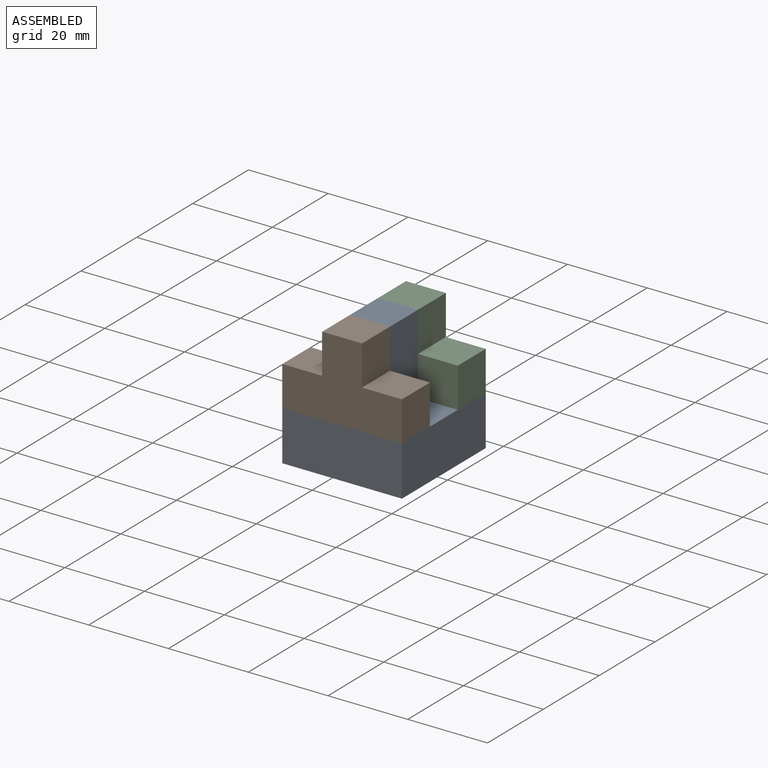
[diagram: assembled view]
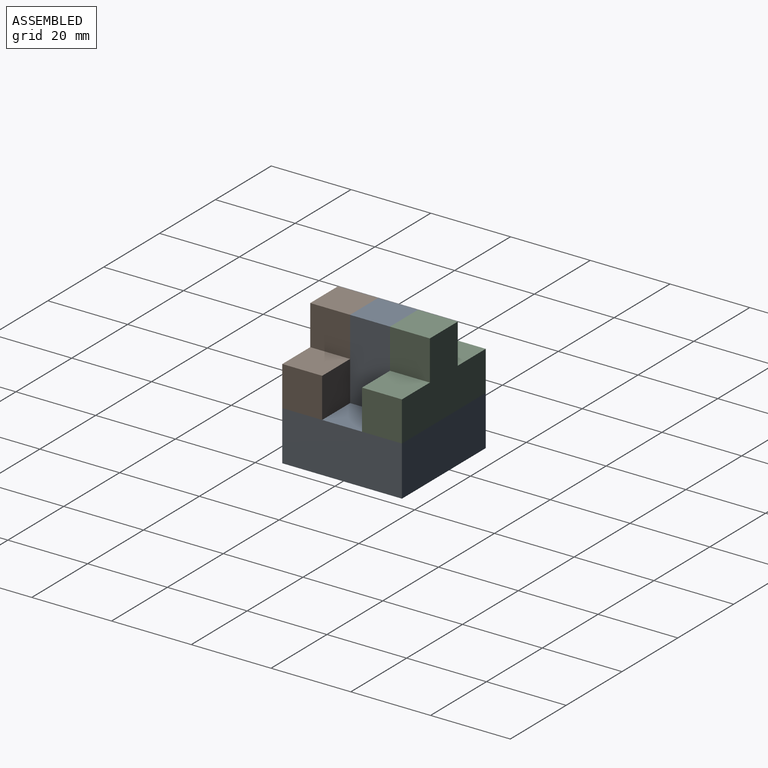
[diagram: assembled view, second angle]
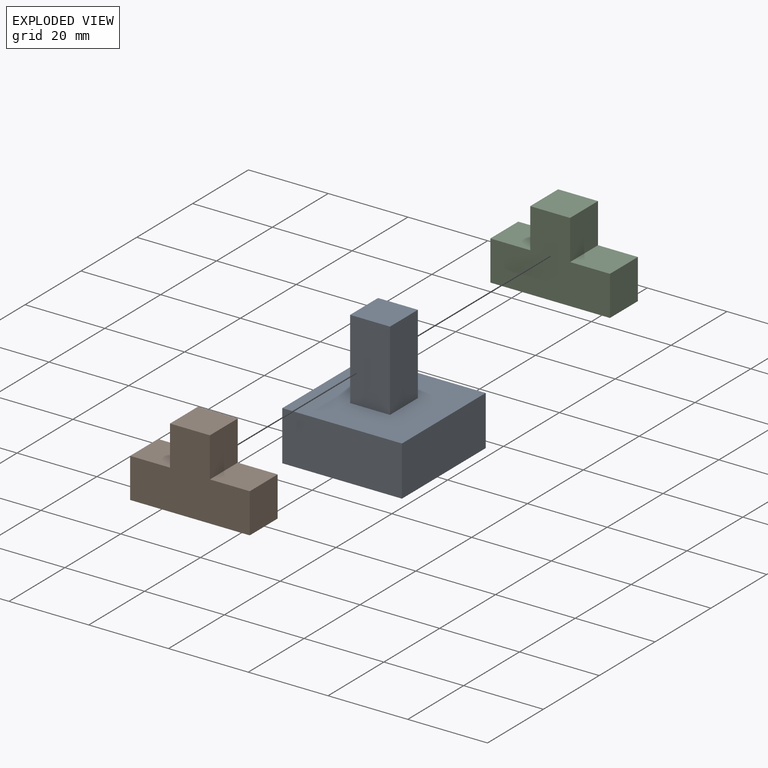
[diagram: exploded view]
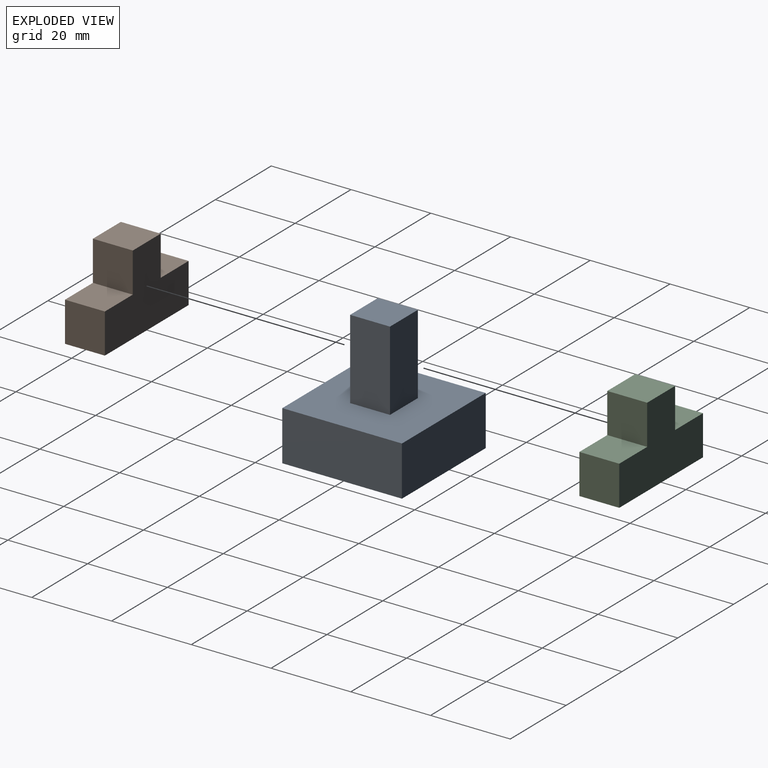
[diagram: exploded view, second angle]
ASSEMBLY  parts=3 mates=2
PART A: 74 faces, bbox 30x30x32.5 mm
  f0: plane 30x12.5mm, normal (0,1,0), area 375mm2, adj f1,f3,f4,f68
  f1: plane 30x12.5mm, normal (-1,0,0), area 375mm2, adj f0,f2,f4,f68
  f2: plane 30x12.5mm, normal (0,-1,0), area 375mm2, adj f1,f3,f4,f68
  f3: plane 30x12.5mm, normal (1,0,0), area 375mm2, adj f0,f2,f4,f68
  f4: plane 30x30mm, normal (0,0,1), area 800mm2, adj f0,f1,f2,f3,f5,f6,f7,f8
  f5: plane 20x10mm, normal (-1,0,0), area 200mm2, adj f4,f6,f8,f9
  f6: plane 20x10mm, normal (0,-1,0), area 200mm2, adj f4,f5,f7,f9
  f7: plane 20x10mm, normal (1,0,0), area 200mm2, adj f4,f6,f8,f9
  f8: plane 20x10mm, normal (0,1,0), area 200mm2, adj f4,f5,f7,f9
  f9: plane 10x10mm, normal (0,0,1), area 100mm2, adj f5,f6,f7,f8
  f10: plane 2.5x0.65mm, normal (0,-1,0), area 1.6mm2, adj f11,f67,f68,f69
  f11: plane 6.15x2.5mm, normal (0.93,-0.36,0), area 16.5mm2, adj f10,f12,f68,f69
  f12: plane 2.5x0.04mm, normal (0,-1,0), area 0.1mm2, adj f11,f13,f68,f69
  f13: extruded ~2.5x1.74mm, area 4.3mm2, adj f12,f14,f68,f69
  f14: plane 4.41x2.5mm, normal (-1,0,0), area 11mm2, adj f13,f15,f68,f69
  f15: plane 2.5x0.75mm, normal (0,-1,0), area 1.9mm2, adj f14,f16,f68,f69
  f16: plane 6.94x2.5mm, normal (1,0,0), area 17.4mm2, adj f15,f17,f68,f69
  f17: plane 2.5x1.22mm, normal (0,1,0), area 3mm2, adj f16,f18,f68,f69
  f18: plane 5.73x2.5mm, normal (-0.93,0.36,0), area 15.3mm2, adj f17,f19,f68,f69
  f19: plane 2.5x0.04mm, normal (0,1,0), area 0.1mm2, adj f18,f20,f68,f69
  f20: plane 5.73x2.5mm, normal (0.93,0.36,0), area 15.3mm2, adj f19,f21,f68,f69
  f21: plane 2.5x1.21mm, normal (0,1,0), area 3mm2, adj f20,f22,f68,f69
  f22: plane 6.94x2.5mm, normal (-1,0,0), area 17.4mm2, adj f21,f23,f68,f69
  f23: plane 2.5x0.81mm, normal (0,-1,0), area 2mm2, adj f22,f24,f68,f69
  f24: plane 4.47x2.5mm, normal (1,0,0), area 11.2mm2, adj f23,f25,f68,f69
  f25: extruded ~2.5x1.67mm, area 4.2mm2, adj f24,f26,f68,f69
  f26: plane 2.5x0.04mm, normal (0,-1,0), area 0.1mm2, adj f25,f67,f68,f69
  f27: plane 2.5x0.81mm, normal (0,-1,0), area 2mm2, adj f28,f63,f68,f73
  f28: plane 6.94x2.5mm, normal (1,0,0), area 17.4mm2, adj f27,f29,f68,f73
  f29: plane 2.5x0.81mm, normal (0,1,0), area 2mm2, adj f28,f63,f68,f73
  f30: extruded ~2.5x1.58mm, area 4.1mm2, adj f31,f64,f68,f72
  f31: extruded ~2.5x1.81mm, area 5.1mm2, adj f30,f32,f68,f72
  f32: extruded ~2.5x2.09mm, area 5.6mm2, adj f31,f33,f68,f72
  f33: extruded ~2.5x2.1mm, area 5.6mm2, adj f32,f34,f68,f72
  f34: extruded ~2.5x1.82mm, area 5.1mm2, adj f33,f35,f68,f72
  f35: extruded ~2.5x1.66mm, area 4.2mm2, adj f34,f36,f68,f72
  f36: plane 2.5x0.71mm, normal (-1,0,0), area 1.8mm2, adj f35,f37,f68,f72
  f37: extruded ~2.5x1.78mm, area 4.5mm2, adj f36,f38,f68,f72
  f38: extruded ~2.5x2.37mm, area 6.6mm2, adj f37,f39,f68,f72
  f39: extruded ~2.64x2.5mm, area 7.1mm2, adj f38,f40,f68,f72
  f40: extruded ~2.5x1.88mm, area 4.8mm2, adj f39,f41,f68,f72
  f41: extruded ~2.5x1.24mm, area 4.3mm2, adj f40,f42,f68,f72
  f42: extruded ~2.5x1.78mm, area 4.6mm2, adj f41,f43,f68,f72
  f43: extruded ~2.5x1.91mm, area 4.9mm2, adj f42,f64,f68,f72
  f44: plane 3.93x2.9mm, normal (-0.8,0.59,0), area 12.2mm2, adj f45,f65,f68,f71
  f45: plane 2.5x0.95mm, normal (0,-1,0), area 2.4mm2, adj f44,f46,f68,f71
  f46: plane 3.37x2.53mm, normal (0.8,-0.6,0), area 10.5mm2, adj f45,f47,f68,f71
  f47: plane 2.5x0.73mm, normal (-0.66,-0.75,0), area 2.4mm2, adj f46,f48,f68,f71
  f48: plane 2.72x2.5mm, normal (-1,0,0), area 6.8mm2, adj f47,f49,f68,f71
  f49: plane 2.5x0.81mm, normal (0,-1,0), area 2mm2, adj f48,f50,f68,f71
  f50: plane 6.94x2.5mm, normal (1,0,0), area 17.4mm2, adj f49,f51,f68,f71
  f51: plane 2.5x0.81mm, normal (0,1,0), area 2mm2, adj f50,f52,f68,f71
  f52: plane 3.44x2.5mm, normal (-1,0,0), area 8.6mm2, adj f51,f53,f68,f71
  f53: plane 3.44x3.15mm, normal (0.74,0.67,0), area 11.7mm2, adj f52,f54,f68,f71
  f54: plane 2.5x0.95mm, normal (0,1,0), area 2.4mm2, adj f53,f65,f68,f71
  f55: plane 3.47x2.5mm, normal (-0.88,0.47,0), area 9.8mm2, adj f56,f66,f68,f70
  f56: plane 3.47x2.5mm, normal (0.88,0.47,0), area 9.8mm2, adj f55,f57,f68,f70
  f57: plane 2.5x0.87mm, normal (0,1,0), area 2.2mm2, adj f56,f58,f68,f70
  f58: plane 4.25x2.5mm, normal (-0.88,-0.48,0), area 12.1mm2, adj f57,f59,f68,f70
  f59: plane 2.69x2.5mm, normal (-1,0,0), area 6.7mm2, adj f58,f60,f68,f70
  f60: plane 2.5x0.82mm, normal (0,-1,0), area 2mm2, adj f59,f61,f68,f70
  f61: plane 2.65x2.5mm, normal (1,0,0), area 6.6mm2, adj f60,f62,f68,f70
  f62: plane 4.29x2.5mm, normal (0.88,-0.47,0), area 12.2mm2, adj f61,f66,f68,f70
  f63: plane 6.94x2.5mm, normal (-1,0,0), area 17.4mm2, adj f27,f29,f68,f73
  f64: plane 2.5x0.69mm, normal (-0.9,-0.44,0), area 1.9mm2, adj f30,f43,f68,f72
  f65: plane 3.02x2.79mm, normal (-0.73,-0.68,0), area 10.3mm2, adj f44,f54,f68,f71
  f66: plane 2.5x0.88mm, normal (0,1,0), area 2.2mm2, adj f55,f62,f68,f70
  f67: plane 6.14x2.5mm, normal (-0.93,-0.36,0), area 16.5mm2, adj f10,f26,f68,f69
  f68: plane 30x30mm, normal (0,0,-1), area 841.4mm2, adj f0,f1,f2,f3,f10,f11,f12,f13
  f69: plane 6.94x6.87mm, normal (0,0,-1), area 20.6mm2, adj f10,f11,f12,f13,f14,f15,f16,f17
  f70: plane 6.94x5.44mm, normal (0,0,-1), area 9.1mm2, adj f55,f56,f57,f58,f59,f60,f61,f62
  f71: plane 6.94x5.01mm, normal (0,0,-1), area 12.7mm2, adj f44,f45,f46,f47,f48,f49,f50,f51
  f72: plane 7.14x5.25mm, normal (0,0,-1), area 10.5mm2, adj f30,f31,f32,f33,f34,f35,f36,f37
  f73: plane 6.94x0.81mm, normal (0,0,-1), area 5.6mm2, adj f27,f28,f29,f63
PART B: 10 faces, bbox 30x10x20 mm
  f0: plane 10x10mm, normal (0,0,1), area 100mm2, adj f1,f7,f8,f9
  f1: plane 10x10mm, normal (-1,0,0), area 100mm2, adj f0,f2,f8,f9
  f2: plane 10x10mm, normal (0,0,1), area 100mm2, adj f1,f3,f8,f9
  f3: plane 10x10mm, normal (-1,0,0), area 100mm2, adj f2,f4,f8,f9
  f4: plane 30x10mm, normal (0,0,-1), area 300mm2, adj f3,f5,f8,f9
  f5: plane 10x10mm, normal (1,0,0), area 100mm2, adj f4,f6,f8,f9
  f6: plane 10x10mm, normal (0,0,1), area 100mm2, adj f5,f7,f8,f9
  f7: plane 10x10mm, normal (1,0,0), area 100mm2, adj f0,f6,f8,f9
  f8: plane 30x20mm, normal (0,-1,0), area 400mm2, adj f0,f1,f2,f3,f4,f5,f6,f7
  f9: plane 30x20mm, normal (0,1,0), area 400mm2, adj f0,f1,f2,f3,f4,f5,f6,f7
PART C: 10 faces, bbox 30x10x20 mm
  f0: plane 10x10mm, normal (0,0,1), area 100mm2, adj f1,f7,f8,f9
  f1: plane 10x10mm, normal (-1,0,0), area 100mm2, adj f0,f2,f8,f9
  f2: plane 10x10mm, normal (0,0,1), area 100mm2, adj f1,f3,f8,f9
  f3: plane 10x10mm, normal (-1,0,0), area 100mm2, adj f2,f4,f8,f9
  f4: plane 30x10mm, normal (0,0,-1), area 300mm2, adj f3,f5,f8,f9
  f5: plane 10x10mm, normal (1,0,0), area 100mm2, adj f4,f6,f8,f9
  f6: plane 10x10mm, normal (0,0,1), area 100mm2, adj f5,f7,f8,f9
  f7: plane 10x10mm, normal (1,0,0), area 100mm2, adj f0,f6,f8,f9
  f8: plane 30x20mm, normal (0,-1,0), area 400mm2, adj f0,f1,f2,f3,f4,f5,f6,f7
  f9: plane 30x20mm, normal (0,1,0), area 400mm2, adj f0,f1,f2,f3,f4,f5,f6,f7
PLACE A t=(-22.4,12.99,-21.52)mm
PLACE B rot(axis=(0,0,1),180deg) t=(-26.3,-14.24,-13.83)mm
PLACE C t=(-13.6,15.76,-11.69)mm
MATE fastened C.f8 <-> A.f8  axis (0,-1,0) through (-16.51,5.76,-11.52)mm
MATE fastened B.f8 <-> A.f6  axis (0,1,0) through (-16.51,-4.24,-11.52)mm
